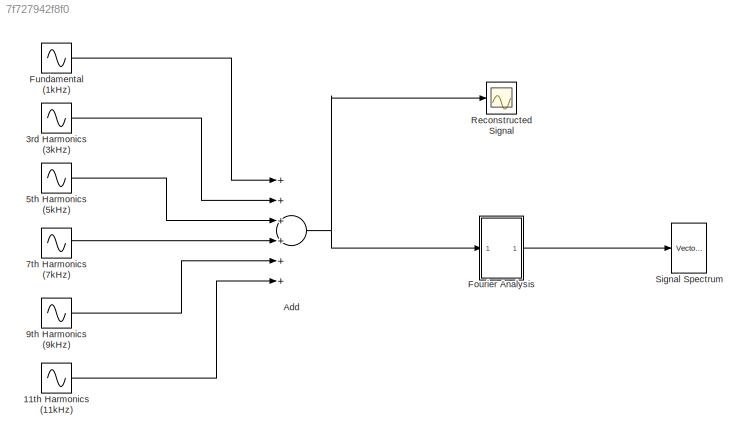
MODEL slx_7f727942f8f0
KIND model
BLOCK [Sin] 11th Harmonics (11kHz)
  Amplitude = 0.1157
  Frequency = 11000*2*pi
  Ports = [0, 1]
  SampleTime = 0
BLOCK [Sin] 3rd Harmonics (3kHz)
  Amplitude = 0.4244
  Frequency = 3*1000*2*pi
  Ports = [0, 1]
  SampleTime = 0
BLOCK [Sin] 5th Harmonics (5kHz)
  Amplitude = 0.2546
  Frequency = 5000*2*pi
  Ports = [0, 1]
  SampleTime = 0
BLOCK [Sin] 7th Harmonics (7kHz)
  Amplitude = 0.1819
  Frequency = 7000*2*pi
  Ports = [0, 1]
  SampleTime = 0
BLOCK [Sin] 9th Harmonics (9kHz)
  Amplitude = 0.1415
  Frequency = 9000*2*pi
  Ports = [0, 1]
  SampleTime = 0
BLOCK [Sum] Add
  InputSameDT = off
  Inputs = ++++++
  OutDataTypeStr = Inherit: Inherit via internal rule
  Ports = [6, 1]
  SaturateOnIntegerOverflow = off
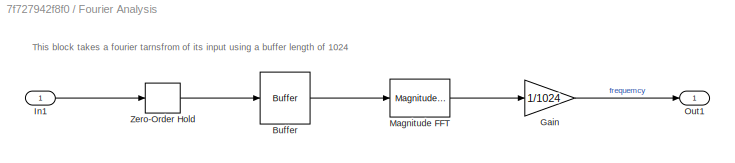
BLOCK [SubSystem] Fourier Analysis
  FunctionWithSeparateData = off
  MaskHideContents = off
  MinAlgLoopOccurrences = off
  Opaque = off
  Ports = [1, 1]
  PropExecContextOutsideSubsystem = off
  RTWSystemCode = Auto
  RequestExecContextInheritance = off
BLOCK [Buffer] Fourier Analysis/Buffer
  N = 1024
  TreatMby1Signals = One channel
BLOCK [Gain] Fourier Analysis/Gain
  Gain = 1/1024
  OutDataTypeStr = Inherit: Inherit via internal rule
  ParamDataTypeStr = Inherit: Inherit via internal rule
  SaturateOnIntegerOverflow = off
BLOCK [Inport] Fourier Analysis/In1
  IconDisplay = Port number
BLOCK [Reference] Fourier Analysis/Magnitude FFT  REF=dspspect3/Magnitude
FFT
  FFTImplementation = Auto
  Ports = [1, 1]
  SourceBlock = dspspect3/Magnitude\nFFT
  SourceType = Magnitude FFT
  fftLenInherit = off
  fftsize = 1024
  mag_or_magsq = Magnitude
BLOCK [Outport] Fourier Analysis/Out1
  IconDisplay = Port number
BLOCK [ZeroOrderHold] Fourier Analysis/Zero-Order Hold
  SampleTime = 50e-6
BLOCK [Sin] Fundamental (1kHz)
  Amplitude = 1.273
  Frequency = 1000*2*pi
  Ports = [0, 1]
  SampleTime = 0
BLOCK [Scope] Reconstructed Signal
  DataFormat = StructureWithTime
  Floating = off
  LimitDataPoints = off
  NumInputPorts = 1
  Ports = [1]
  SampleTime = 0
  SaveName = ScopeData1
  ShowLegends = off
  YMax = 2
  YMin = -2
  ZoomMode = xonly
BLOCK [Reference] Signal Spectrum  REF=dspsnks4/Vector
Scope
  AxisGrid = on
  AxisLegend = off
  AxisProperties = off
  AxisZoom = off
  DisplayProperties = off
  Domain = Frequency
  FigPos = get(0,'defaultfigureposition')
  FrameNumber = on
  HorizSpan = 1
  InheritXIncr = on
  LineMarkers = o
  LineProperties = off
  Memory = off
  OpenScopeAtSimStart = on
  OpenScopeImmediately = off
  Ports = [1]
  ScopeProperties = on
  ShowPortLabels = off
  SourceBlock = dspsnks4/Vector\nScope
  SourceType = Vector Scope
  XAxisParamsVer = 6.9
  XIncr = 1
  XLabel = Time
  XLimit = Auto
  XMax = 4
  XMin = 0
  XRange = [-Fs/2...Fs/2]
  XStart = 0
  XUnits = Hertz
  YLabel = Amplitude
  YMax = 20
  YMin = 0
  YUnits = Magnitude
ANNOTATION Fourier Analysis: This block takes a fourier tarnsfrom of its input using a buffer length of 1024
LINE 11th Harmonics (11kHz):1 -> Add:6
LINE 3rd Harmonics (3kHz):1 -> Add:2
LINE 5th Harmonics (5kHz):1 -> Add:3
LINE 7th Harmonics (7kHz):1 -> Add:4
LINE 9th Harmonics (9kHz):1 -> Add:5
NET Add:1 -> Fourier Analysis:1, Reconstructed Signal:1
LINE Fourier Analysis/Buffer:1 -> Fourier Analysis/Magnitude FFT:1
LINE Fourier Analysis/Gain:1 -> Fourier Analysis/Out1:1
LINE Fourier Analysis/In1:1 -> Fourier Analysis/Zero-Order Hold:1
LINE Fourier Analysis/Magnitude FFT:1 -> Fourier Analysis/Gain:1
LINE Fourier Analysis/Zero-Order Hold:1 -> Fourier Analysis/Buffer:1
LINE Fourier Analysis:1 -> Signal Spectrum:1
LINE Fundamental (1kHz):1 -> Add:1
note: NET lines group one-source signal fan-out (src -> all destinations, sorted); 1:1 wires keep LINE
